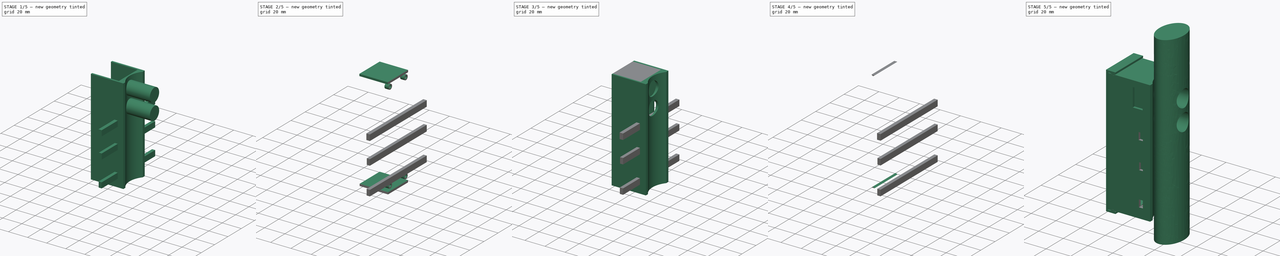
[diagram: build sequence overview — one tinted view per stage of 5, left to right]
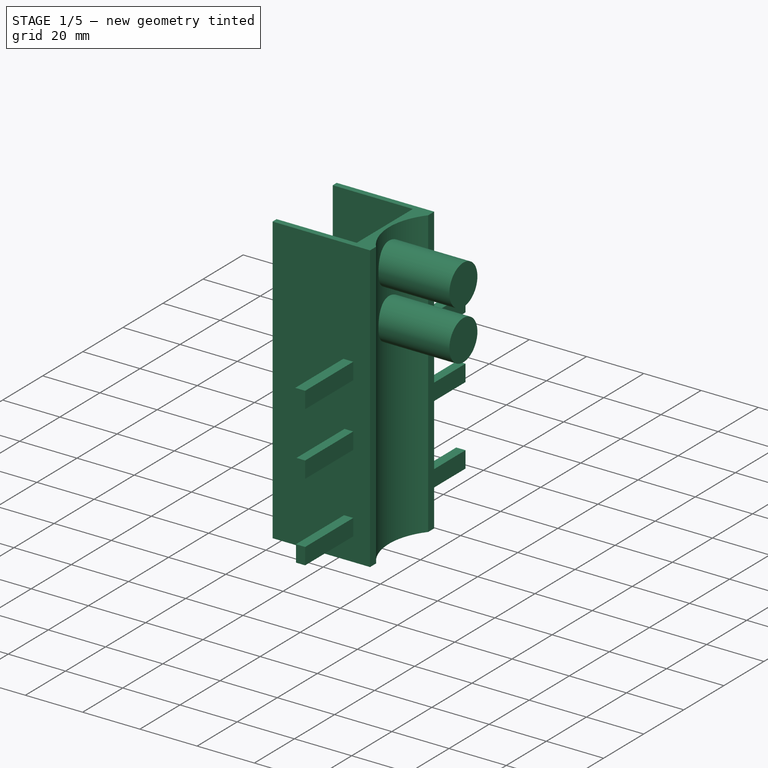
[diagram: stage 1 of 5 — iso view after this stage's code; geometry added in this stage tinted green]
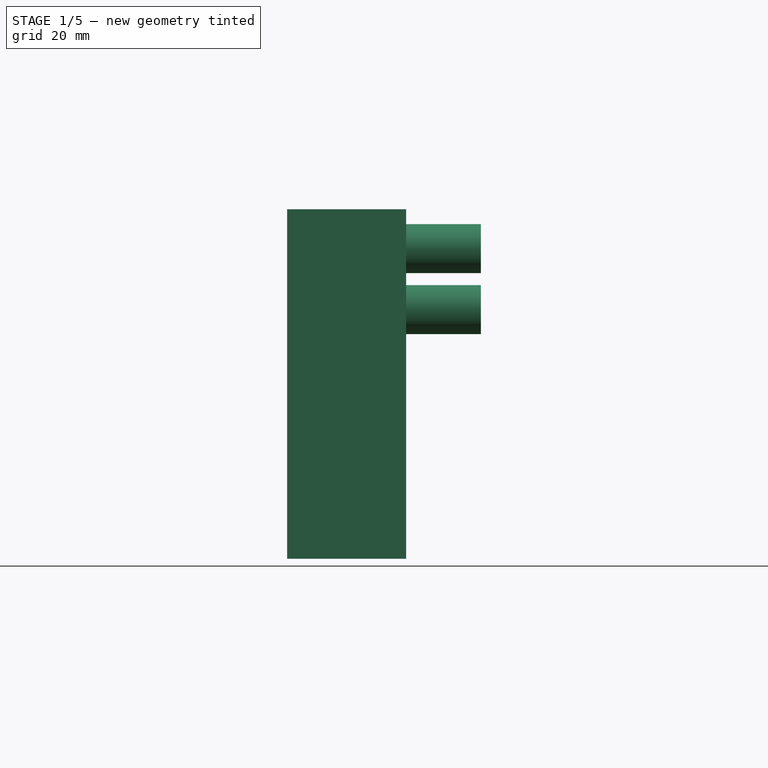
[diagram: stage 1 of 5 — front view after this stage's code; geometry added in this stage tinted green]
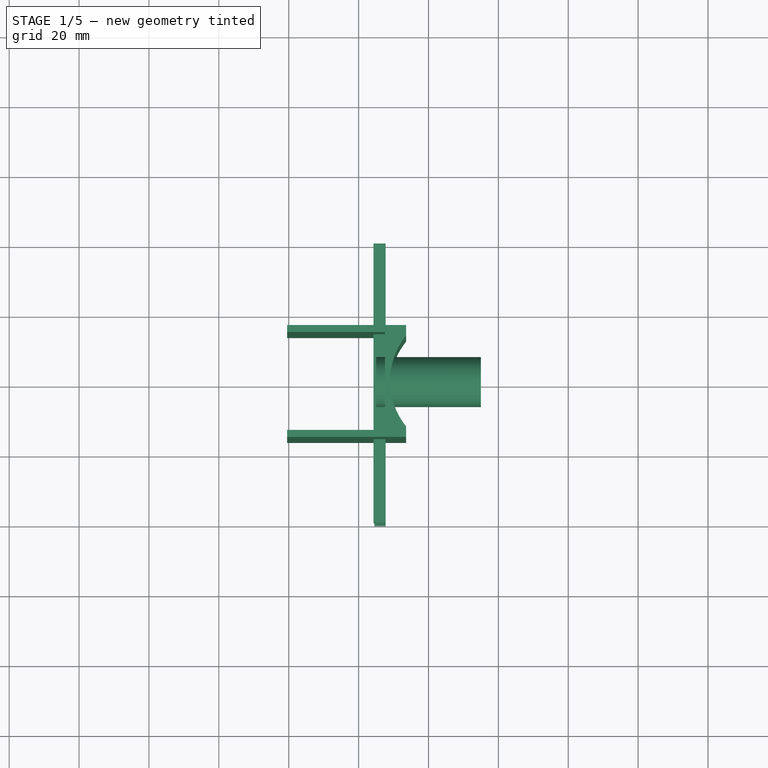
[diagram: stage 1 of 5 — top view after this stage's code; geometry added in this stage tinted green]
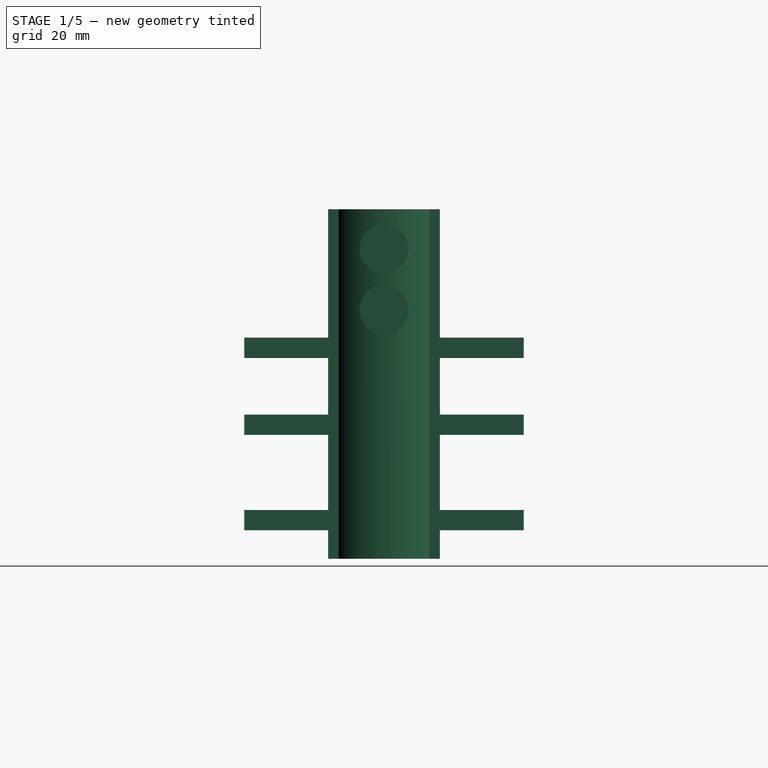
[diagram: stage 1 of 5 — right view after this stage's code; geometry added in this stage tinted green]
FCSTD DOCUMENT  (FreeCAD 0.20R29410 (Git))
Label: control
License: All rights reserved
LicenseURL: http://en.wikipedia.org/wiki/All_rights_reserved
objects: Sketcher::SketchObject×11, Part::Extrusion×10, Part::Cut×6, Part::MultiFuse×2
note: 29 computed .brp shape members not serialized (recipe doc carries the construction recipe); baked Part::Feature solids carry a one-line shape summary decoded from their .brp

FEATURE [Sketcher::SketchObject] Sketch
  FullyConstrained = false
  sketch-geometry (5):
    g0: ArcOfEllipse CenterX=0 CenterY=0 CenterZ=0 NormalX=0 NormalY=0 NormalZ=1 MajorRadius=15 MinorRadius=10 AngleXU=-1.5708 StartAngle=1.39097 EndAngle=7.67416
    g1: LineSegment StartX=3.7e-15 StartY=-15 StartZ=0 EndX=-3.7e-15 EndY=15 EndZ=0
    g2: LineSegment StartX=10 StartY=0 StartZ=0 EndX=-10 EndY=0 EndZ=0
    g3: GeomPoint X=4.9e-15 Y=-11.1803 Z=0
    g4: GeomPoint X=-4.9e-15 Y=11.1803 Z=0
  constraints (6):
    c: InternalAlignment(g1-g4 -> g0) x4
    c: Coincident(g0,g-1)
    c: Coincident(g0,g0)
    c: Horizontal(g2)
    c: DistanceY(g1,g1) = 30
    c: DistanceX(g2,g2) = 20
FEATURE [Part::Extrusion] Extrude  label="Pickaxe body"
  Base = -> Sketch
  Dir = (0,0,1)
  DirMode = 2
  FaceMakerClass = Part::FaceMakerBullseye
  LengthFwd = 150
  LengthRev = 0
  Placement = pos=(0,0,76) rot=(0,0,1;0rad)
  Solid = true
  Symmetric = false
FEATURE [Sketcher::SketchObject] Sketch001
  FullyConstrained = false
  MapMode = 45
  Placement = pos=(-8.90931e-07,-1.25496e-05,151) rot=(0.577351,0.57735,0.57735;2.09439rad)
  Support = -> [Extrude]
  sketch-geometry (2):
    g0: Circle CenterX=0 CenterY=28.7477 CenterZ=0 NormalX=0 NormalY=0 NormalZ=1 AngleXU=0 Radius=7
    g1: Circle CenterX=0 CenterY=11.2845 CenterZ=0 NormalX=0 NormalY=0 NormalZ=1 AngleXU=0 Radius=7
  constraints (4):
    c: PointOnObject(g0,g-2)
    c: Diameter(g0) = 14
    c: Equal(g0,g1) = 14
    c: PointOnObject(g1,g-2)
FEATURE [Part::Extrusion] Extrude001
  Base = -> Sketch001
  Dir = (1,-2.40545e-06,0)
  DirMode = 2
  FaceMakerClass = Part::FaceMakerBullseye
  LengthFwd = 30
  LengthRev = 0
  Solid = true
  Symmetric = true
FEATURE [Sketcher::SketchObject] Sketch003
  FullyConstrained = false
  sketch-geometry (4):
    g0: LineSegment StartX=12.0987 StartY=12.0524 StartZ=0 EndX=104.099 EndY=12.0524 EndZ=0
    g1: LineSegment StartX=104.099 StartY=12.0524 StartZ=0 EndX=104.099 EndY=-13.9476 EndZ=0
    g2: LineSegment StartX=104.099 StartY=-13.9476 StartZ=0 EndX=12.0987 EndY=-13.9476 EndZ=0
    g3: LineSegment StartX=12.0987 StartY=-13.9476 StartZ=0 EndX=12.0987 EndY=12.0524 EndZ=0
  constraints (10):
    c: Coincident(g0,g1)
    c: Coincident(g1,g2)
    c: Coincident(g2,g3)
    c: Coincident(g3,g0)
    c: Horizontal(g0)
    c: Horizontal(g2)
    c: Vertical(g1)
    c: Vertical(g3)
    c: DistanceX(g0,g0) = 92
    c: DistanceY(g1,g1) = 26
FEATURE [Sketcher::SketchObject] Sketch004
  FullyConstrained = false
  sketch-geometry (11):
    g0: LineSegment StartX=-40.46 StartY=16 StartZ=0 EndX=-6.4 EndY=16 EndZ=0
    g1: LineSegment StartX=-6.4 StartY=16 StartZ=0 EndX=-6.4 EndY=13 EndZ=0
    g2: ArcOfCircle CenterX=9.7124 CenterY=0 CenterZ=0 NormalX=0 NormalY=0 NormalZ=1 AngleXU=0 Radius=20.7029 StartAngle=2.4627 EndAngle=3.82049
    g3: LineSegment StartX=-6.4 StartY=16 StartZ=0 EndX=-6.4 EndY=-16.11 EndZ=0
    g4: LineSegment StartX=-40.46 StartY=-16 StartZ=0 EndX=-6.4 EndY=-16 EndZ=0
    g5: LineSegment StartX=-6.4 StartY=-16 StartZ=0 EndX=-6.4 EndY=-13 EndZ=0
    g6: LineSegment StartX=-40.46 StartY=16 StartZ=0 EndX=-40.46 EndY=14 EndZ=0
    g7: LineSegment StartX=-40.46 StartY=14 StartZ=0 EndX=-12.46 EndY=14 EndZ=0
    g8: LineSegment StartX=-12.46 StartY=14 StartZ=0 EndX=-12.46 EndY=-14 EndZ=0
    g9: LineSegment StartX=-12.46 StartY=-14 StartZ=0 EndX=-40.46 EndY=-14 EndZ=0
    g10: LineSegment StartX=-40.46 StartY=-14 StartZ=0 EndX=-40.46 EndY=-16 EndZ=0
  constraints (33):
    c: Horizontal(g0)
    c: Coincident(g0,g1)
    c: Vertical(g1)
    c: PointOnObject(g2,g-1)
    c: Coincident(g2,g1)
    c: Vertical(g3)
    c: Distance(g3,g-2) = 6.4
    c: DistanceY(g3,g3) = 32.11
    c: DistanceY(g-1,g3) = 16
    c: Coincident(g0,g3)
    c: PointOnObject(g2,g3)
    c: Horizontal(g4)
    c: Coincident(g4,g5)
    c: Vertical(g5)
    c: Coincident(g2,g5)
    c: DistanceY(g5,g5) = 3
    c: DistanceY(g1,g1) = 3
    c: Coincident(g0,g6)
    c: Vertical(g6)
    c: Coincident(g6,g7)
    c: Horizontal(g7)
    c: Coincident(g7,g8)
    c: Vertical(g8)
    c: Coincident(g8,g9)
    c: Horizontal(g9)
    c: Coincident(g10,g9)
    c: Coincident(g10,g4)
    c: Vertical(g10)
    c: DistanceY(g6,g6) = 2
    c: DistanceY(g10,g10) = 2
    c: Distance(g7,g1) = 6.06
    c: DistanceX(g9,g9) = 28
    c: DistanceX(g7,g7) = 28
FEATURE [Part::Extrusion] Extrude003
  Base = -> Sketch004
  Dir = (0,0,1)
  DirMode = 2
  FaceMakerClass = Part::FaceMakerBullseye
  LengthFwd = 100
  LengthRev = 0
  Placement = pos=(0,0,91) rot=(0,0,1;0rad)
  Solid = true
  Symmetric = false
FEATURE [Sketcher::SketchObject] Sketch011
  FullyConstrained = false
  Placement = pos=(0,0,0) rot=(1,0,0;1.5708rad)
  sketch-geometry (13):
    g0: LineSegment StartX=-15.4869 StartY=104.941 StartZ=0 EndX=-12.269 EndY=104.941 EndZ=0
    g1: LineSegment StartX=-12.269 StartY=104.941 StartZ=0 EndX=-12.269 EndY=99.1387 EndZ=0
    g2: LineSegment StartX=-12.269 StartY=99.1387 StartZ=0 EndX=-15.4869 EndY=99.1387 EndZ=0
    g3: LineSegment StartX=-15.4869 StartY=99.1387 StartZ=0 EndX=-15.4869 EndY=104.941 EndZ=0
    g4: LineSegment StartX=-12.269 StartY=99.1387 StartZ=0 EndX=-12.269 EndY=163.425 EndZ=0
    g5: LineSegment StartX=-15.304 StartY=132.251 StartZ=0 EndX=-12.269 EndY=132.251 EndZ=0
    g6: LineSegment StartX=-12.269 StartY=132.251 StartZ=0 EndX=-12.269 EndY=126.449 EndZ=0
    g7: LineSegment StartX=-12.269 StartY=126.449 StartZ=0 EndX=-15.304 EndY=126.449 EndZ=0
    g8: LineSegment StartX=-15.304 StartY=126.449 StartZ=0 EndX=-15.304 EndY=132.251 EndZ=0
    g9: LineSegment StartX=-12.269 StartY=154.267 StartZ=0 EndX=-15.7291 EndY=154.267 EndZ=0
    g10: LineSegment StartX=-15.7291 StartY=154.267 StartZ=0 EndX=-15.7291 EndY=148.445 EndZ=0
    g11: LineSegment StartX=-15.7291 StartY=148.445 StartZ=0 EndX=-12.269 EndY=148.445 EndZ=0
    g12: LineSegment StartX=-12.269 StartY=148.445 StartZ=0 EndX=-12.269 EndY=154.267 EndZ=0
  constraints (28):
    c: Coincident(g0,g1)
    c: Coincident(g1,g2)
    c: Coincident(g2,g3)
    c: Coincident(g3,g0)
    c: Horizontal(g0)
    c: Horizontal(g2)
    c: Vertical(g1)
    c: Vertical(g3)
    c: Coincident(g4,g1)
    c: Vertical(g4)
    c: Coincident(g5,g6)
    c: Coincident(g6,g7)
    c: Coincident(g7,g8)
    c: Coincident(g8,g5)
    c: Horizontal(g5)
    c: Horizontal(g7)
    c: Vertical(g6)
    c: Vertical(g8)
    c: PointOnObject(g6,g4)
    c: Coincident(g9,g10)
    c: Coincident(g10,g11)
    c: Coincident(g11,g12)
    c: Coincident(g12,g9)
    c: Horizontal(g9)
    c: Horizontal(g11)
    c: Vertical(g10)
    c: Vertical(g12)
    c: PointOnObject(g9,g4)
FEATURE [Part::Extrusion] Extrude010
  Base = -> Sketch011
  Dir = (0,-1,2e-16)
  DirMode = 2
  FaceMakerClass = Part::FaceMakerBullseye
  LengthFwd = 80
  LengthRev = 0
  Solid = true
  Symmetric = true
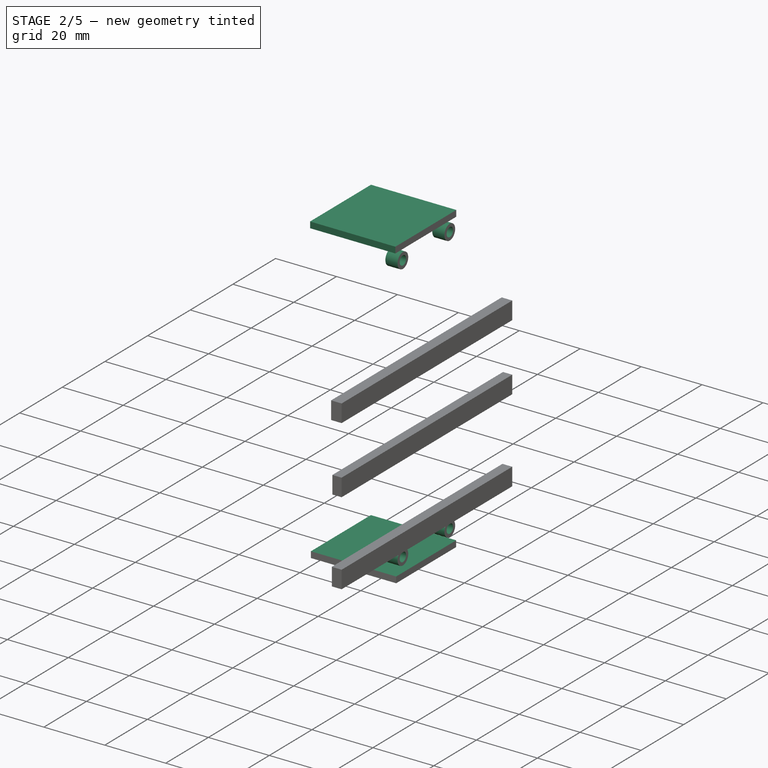
[diagram: stage 2 of 5 — iso view after this stage's code; geometry added in this stage tinted green]
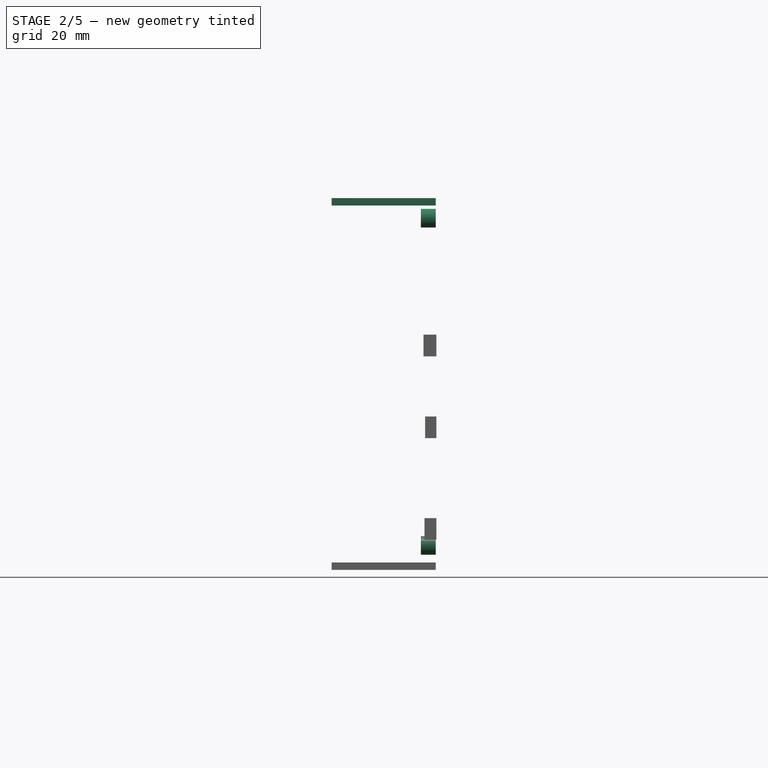
[diagram: stage 2 of 5 — front view after this stage's code; geometry added in this stage tinted green]
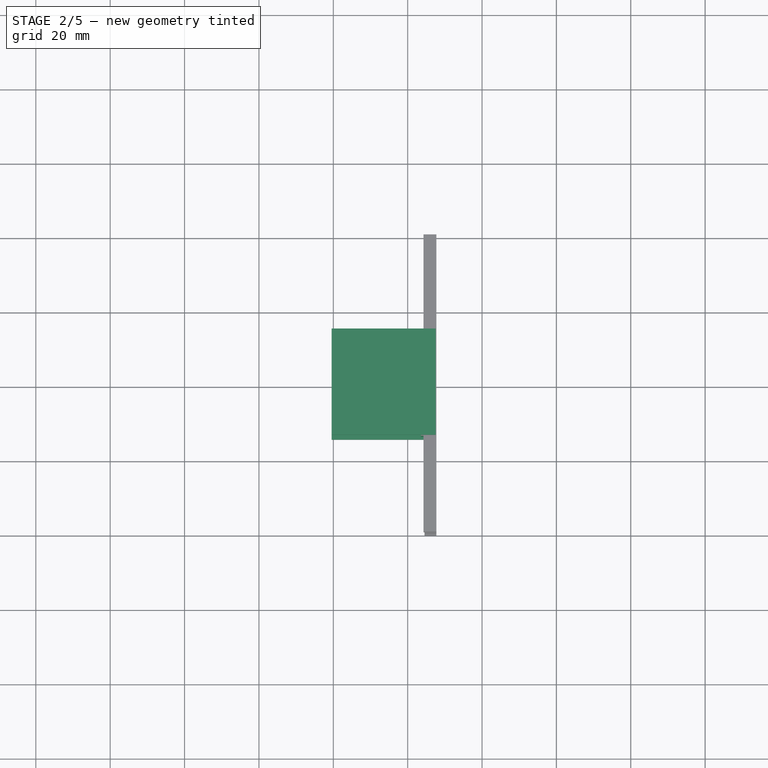
[diagram: stage 2 of 5 — top view after this stage's code; geometry added in this stage tinted green]
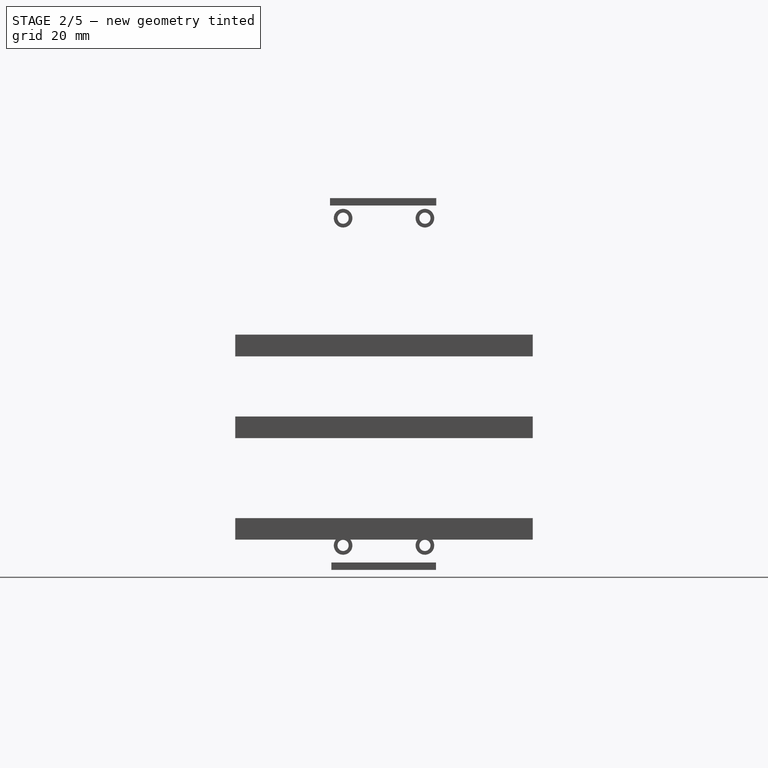
[diagram: stage 2 of 5 — right view after this stage's code; geometry added in this stage tinted green]
FEATURE [Part::Cut] Cut001
  Base = -> Extrude003
  Tool = -> Extrude001
FEATURE [Sketcher::SketchObject] Sketch005
  FullyConstrained = false
  MapMode = 5
  Placement = pos=(-12.46,0,0) rot=(0.57735,-0.57735,-0.57735;2.0944rad)
  Support = -> [Cut001]
  sketch-geometry (13):
    g0: LineSegment StartX=-13 StartY=187.59 StartZ=0 EndX=13 EndY=187.59 EndZ=0
    g1: LineSegment StartX=13 StartY=187.59 StartZ=0 EndX=13 EndY=95.59 EndZ=0
    g2: LineSegment StartX=13 StartY=95.59 StartZ=0 EndX=-13 EndY=95.59 EndZ=0
    g3: LineSegment StartX=-13 StartY=95.59 StartZ=0 EndX=-13 EndY=187.59 EndZ=0
    g4: GeomPoint X=0 Y=141.59 Z=0
    g5: LineSegment StartX=-13.9802 StartY=93 StartZ=0 EndX=14.1488 EndY=93 EndZ=0
    g6: LineSegment StartX=14.1488 StartY=93 StartZ=0 EndX=14.1488 EndY=91 EndZ=0
    g7: LineSegment StartX=14.1488 StartY=91 StartZ=0 EndX=-13.9802 EndY=91 EndZ=0
    g8: LineSegment StartX=-13.9802 StartY=91 StartZ=0 EndX=-13.9802 EndY=93 EndZ=0
    g9: LineSegment StartX=-14.0387 StartY=191 StartZ=0 EndX=14.5238 EndY=191 EndZ=0
    g10: LineSegment StartX=14.5238 StartY=191 StartZ=0 EndX=14.5238 EndY=189 EndZ=0
    g11: LineSegment StartX=14.5238 StartY=189 StartZ=0 EndX=-14.0387 EndY=189 EndZ=0
    g12: LineSegment StartX=-14.0387 StartY=189 StartZ=0 EndX=-14.0387 EndY=191 EndZ=0
  constraints (30):
    c: Coincident(g0,g1)
    c: Coincident(g1,g2)
    c: Coincident(g2,g3)
    c: Horizontal(g0)
    c: Horizontal(g2)
    c: Vertical(g1)
    c: Vertical(g3)
    c: PointOnObject(g4,g-2)
    c: Symmetric(g0,g1,g4)
    c: DistanceX(g0,g0) = 26
    c: DistanceY(g1,g1) = 92
    c: Coincident(g5,g6)
    c: Coincident(g6,g7)
    c: Coincident(g7,g8)
    c: Coincident(g8,g5)
    c: Horizontal(g5)
    c: Horizontal(g7)
    c: Vertical(g6)
    c: Vertical(g8)
    c: DistanceY(g8,g8) = 2
    c: Coincident(g9,g10)
    c: Coincident(g10,g11)
    c: Coincident(g11,g12)
    c: Coincident(g12,g9)
    c: Horizontal(g9)
    c: Horizontal(g11)
    c: Vertical(g10)
    c: Vertical(g12)
    c: DistanceY(g12,g12) = 2
    c: DistanceY(g-1,g4) = 141.59
FEATURE [Sketcher::SketchObject] Sketch006
  FullyConstrained = false
  MapMode = 5
  Placement = pos=(-12.46,0,0) rot=(0.57735,-0.57735,-0.57735;2.0944rad)
  Support = -> [Cut001]
  sketch-geometry (22):
    g0: LineSegment StartX=-13 StartY=187.59 StartZ=0 EndX=13 EndY=187.59 EndZ=0
    g1: LineSegment StartX=13 StartY=187.59 StartZ=0 EndX=13 EndY=95.59 EndZ=0
    g2: LineSegment StartX=13 StartY=95.59 StartZ=0 EndX=-13 EndY=95.59 EndZ=0
    g3: LineSegment StartX=-13 StartY=95.59 StartZ=0 EndX=-13 EndY=187.59 EndZ=0
    g4: GeomPoint X=0 Y=141.59 Z=0
    g5: LineSegment StartX=-13.9802 StartY=93 StartZ=0 EndX=14.1488 EndY=93 EndZ=0
    g6: LineSegment StartX=14.1488 StartY=93 StartZ=0 EndX=14.1488 EndY=91 EndZ=0
    g7: LineSegment StartX=14.1488 StartY=91 StartZ=0 EndX=-13.9802 EndY=91 EndZ=0
    g8: LineSegment StartX=-13.9802 StartY=91 StartZ=0 EndX=-13.9802 EndY=93 EndZ=0
    g9: LineSegment StartX=-14.0387 StartY=191 StartZ=0 EndX=14.5238 EndY=191 EndZ=0
    g10: LineSegment StartX=14.5238 StartY=191 StartZ=0 EndX=14.5238 EndY=189 EndZ=0
    g11: LineSegment StartX=14.5238 StartY=189 StartZ=0 EndX=-14.0387 EndY=189 EndZ=0
    g12: LineSegment StartX=-14.0387 StartY=189 StartZ=0 EndX=-14.0387 EndY=191 EndZ=0
    g13: Circle CenterX=-11 CenterY=185.59 CenterZ=0 NormalX=0 NormalY=0 NormalZ=1 AngleXU=0 Radius=1.5
    g14: Circle CenterX=-11 CenterY=185.59 CenterZ=0 NormalX=0 NormalY=0 NormalZ=1 AngleXU=0 Radius=2.5
    g15: Circle CenterX=11 CenterY=185.59 CenterZ=0 NormalX=0 NormalY=0 NormalZ=1 AngleXU=0 Radius=2.5
    g16: Circle CenterX=11 CenterY=185.59 CenterZ=0 NormalX=0 NormalY=0 NormalZ=1 AngleXU=0 Radius=1.5
    g17: LineSegment StartX=-24.864 StartY=141.59 StartZ=0 EndX=27.3082 EndY=141.59 EndZ=0
    g18: Circle CenterX=-11 CenterY=97.59 CenterZ=0 NormalX=0 NormalY=0 NormalZ=1 AngleXU=0 Radius=2.5
    g19: Circle CenterX=-11 CenterY=97.59 CenterZ=0 NormalX=0 NormalY=0 NormalZ=1 AngleXU=0 Radius=1.5
    g20: Circle CenterX=11 CenterY=97.59 CenterZ=0 NormalX=0 NormalY=0 NormalZ=1 AngleXU=0 Radius=2.5
    g21: Circle CenterX=11 CenterY=97.59 CenterZ=0 NormalX=0 NormalY=0 NormalZ=1 AngleXU=0 Radius=1.5
  constraints (47):
    c: Coincident(g0,g1)
    c: Coincident(g1,g2)
    c: Coincident(g2,g3)
    c: Coincident(g3,g0)
    c: Horizontal(g0)
    c: Horizontal(g2)
    c: Vertical(g1)
    c: Vertical(g3)
    c: PointOnObject(g4,g-2)
    c: Symmetric(g0,g1,g4)
    c: DistanceX(g0,g0) = 26
    c: DistanceY(g1,g1) = 92
    c: Coincident(g5,g6)
    c: Coincident(g6,g7)
    c: Coincident(g7,g8)
    c: Coincident(g8,g5)
    c: Horizontal(g5)
    c: Horizontal(g7)
    c: Vertical(g6)
    c: Vertical(g8)
    c: DistanceY(g8,g8) = 2
    c: Coincident(g9,g10)
    c: Coincident(g10,g11)
    c: Coincident(g11,g12)
    c: Coincident(g12,g9)
    c: Horizontal(g9)
    c: Horizontal(g11)
    c: Vertical(g10)
    c: Vertical(g12)
    c: DistanceY(g12,g12) = 2
    c: Coincident(g14,g13)
    c: Diameter(g13) = 3
    c: Diameter(g14) = 5
    c: DistanceY(g-1,g4) = 141.59
    c: Distance(g13,g0) = 2
    c: Distance(g13,g3) = 2
    c: Coincident(g15,g16)
    c: Diameter(g16) = 3
    c: Diameter(g15) = 5
    c: Horizontal(g17)
    c: PointOnObject(g4,g17)
    c: Coincident(g18,g19)
    c: Diameter(g19) = 3
    c: Diameter(g18) = 5
    c: Coincident(g20,g21)
    c: Diameter(g21) = 3
    c: Diameter(g20) = 5
FEATURE [Part::Extrusion] Extrude004
  Base = -> Sketch005
  Dir = (-1,0,0)
  DirMode = 2
  FaceMakerClass = Part::FaceMakerBullseye
  LengthFwd = 28
  LengthRev = 0
  Solid = true
  Symmetric = false
FEATURE [Part::Extrusion] Extrude005
  Base = -> Sketch006
  Dir = (-1,0,0)
  DirMode = 2
  FaceMakerClass = Part::FaceMakerBullseye
  LengthFwd = 4
  LengthRev = 0
  Solid = true
  Symmetric = false
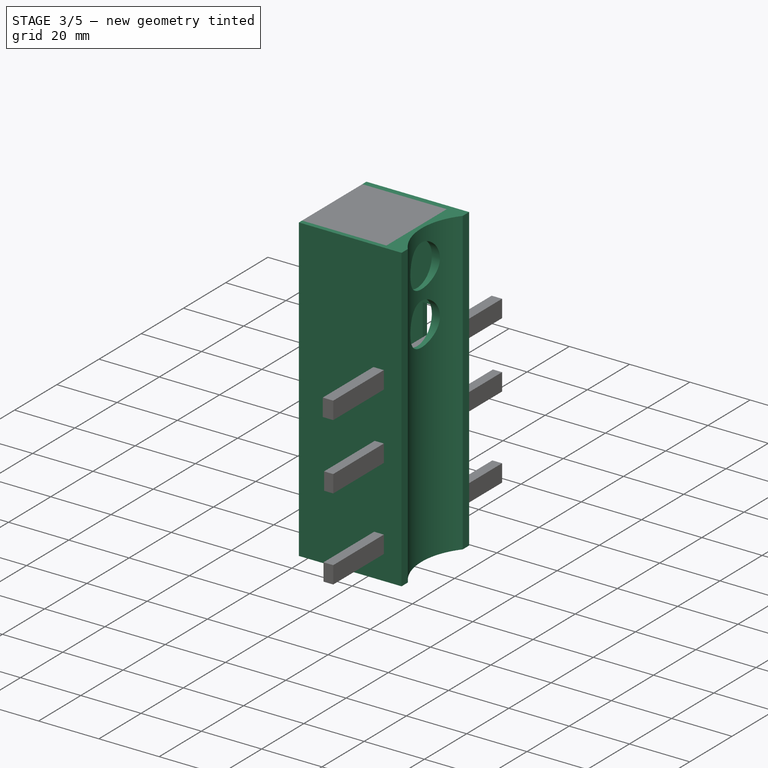
[diagram: stage 3 of 5 — iso view after this stage's code; geometry added in this stage tinted green]
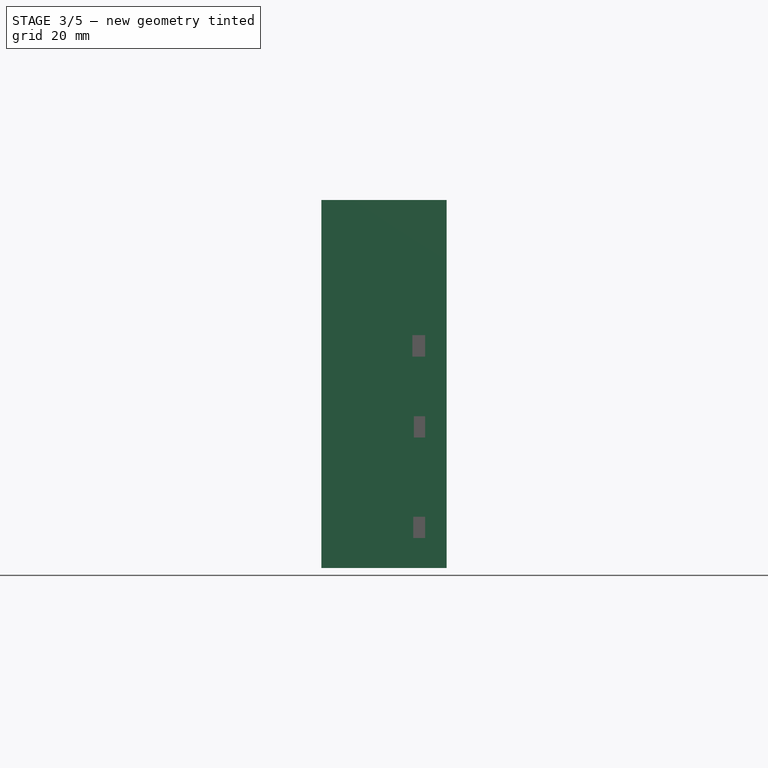
[diagram: stage 3 of 5 — front view after this stage's code; geometry added in this stage tinted green]
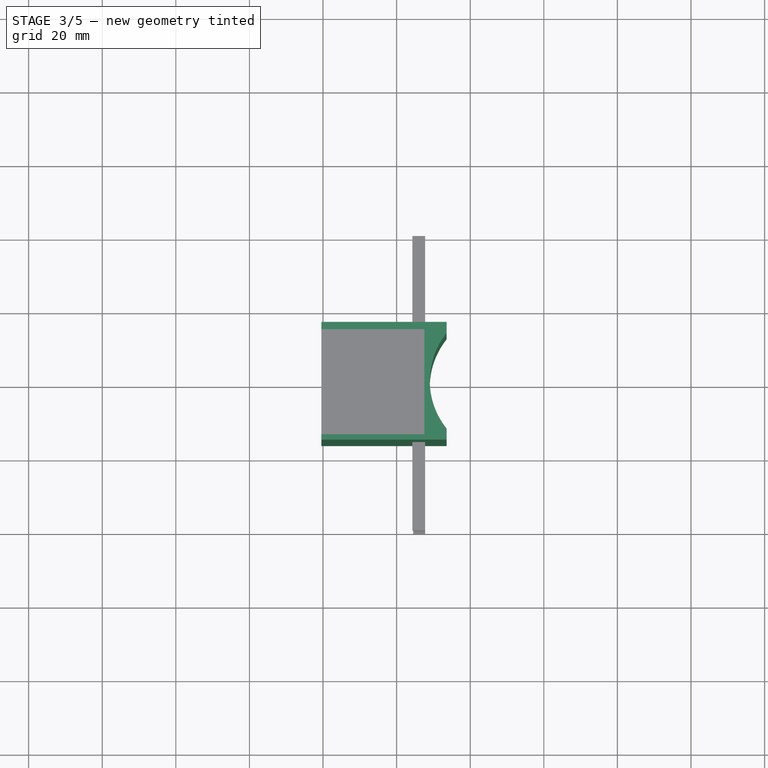
[diagram: stage 3 of 5 — top view after this stage's code; geometry added in this stage tinted green]
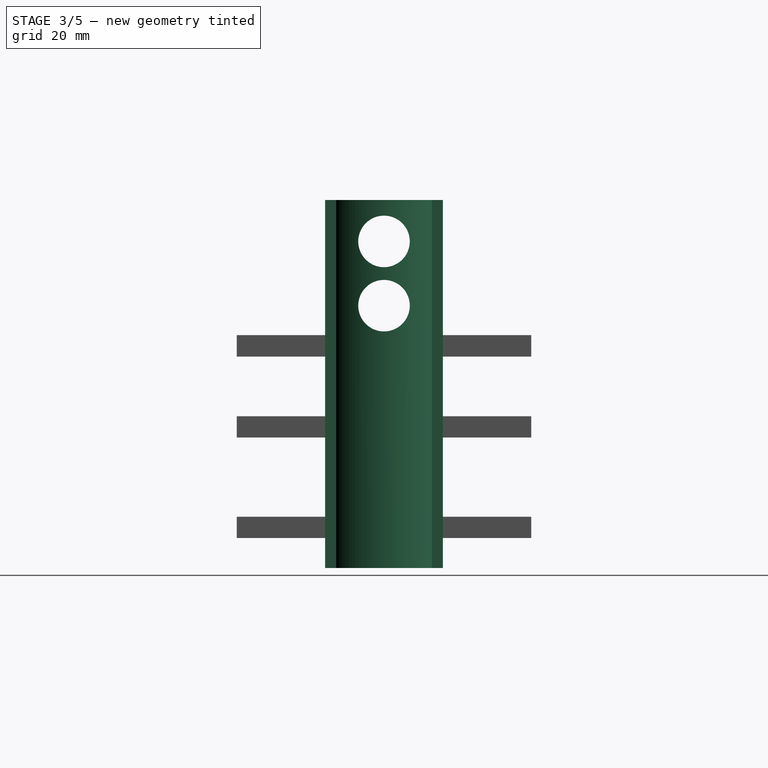
[diagram: stage 3 of 5 — right view after this stage's code; geometry added in this stage tinted green]
FEATURE [Part::MultiFuse] Fusion
  Shapes = -> [Extrude004,Cut001]
FEATURE [Part::MultiFuse] Fusion001
  Shapes = -> [Fusion,Extrude005]
FEATURE [Sketcher::SketchObject] Sketch007
  FullyConstrained = true
  MapMode = 5
  Placement = pos=(0,16,0) rot=(0,0.707107,0.707107;3.14159rad)
  Support = -> [Fusion001]
  sketch-geometry (5):
    g0: LineSegment StartX=12.38 StartY=190.99 StartZ=0 EndX=12.38 EndY=59.71 EndZ=0
    g1: LineSegment StartX=12.38 StartY=160.99 StartZ=0 EndX=20.38 EndY=160.99 EndZ=0
    g2: LineSegment StartX=20.38 StartY=160.99 StartZ=0 EndX=20.38 EndY=148.99 EndZ=0
    g3: LineSegment StartX=20.38 StartY=148.99 StartZ=0 EndX=12.38 EndY=148.99 EndZ=0
    g4: LineSegment StartX=12.38 StartY=148.99 StartZ=0 EndX=12.38 EndY=160.99 EndZ=0
  constraints (16):
    c: Vertical(g0)
    c: Coincident(g1,g2)
    c: Coincident(g2,g3)
    c: Coincident(g3,g4)
    c: Coincident(g4,g1)
    c: Horizontal(g1)
    c: Horizontal(g3)
    c: Vertical(g2)
    c: Vertical(g4)
    c: PointOnObject(g1,g0)
    c: DistanceY(g-1,g0) = 59.71
    c: DistanceX(g-1,g0) = 12.38
    c: DistanceY(g0,g0) = 131.28
    c: DistanceY(g1,g0) = 30
    c: DistanceY(g4,g4) = 12
    c: DistanceX(g1,g1) = 8
FEATURE [Part::Extrusion] Extrude006
  Base = -> Sketch007
  Dir = (0,1,-2e-16)
  DirMode = 2
  FaceMakerClass = Part::FaceMakerBullseye
  LengthFwd = 10
  LengthRev = 0
  Solid = true
  Symmetric = true
FEATURE [Part::Cut] Cut002
  Base = -> Fusion001
  Tool = -> Extrude006
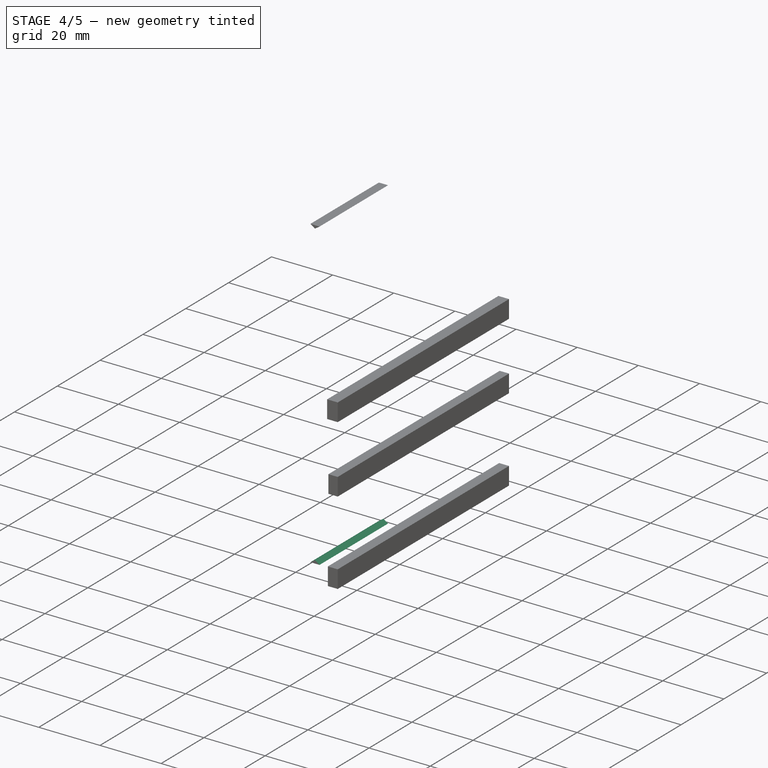
[diagram: stage 4 of 5 — iso view after this stage's code; geometry added in this stage tinted green]
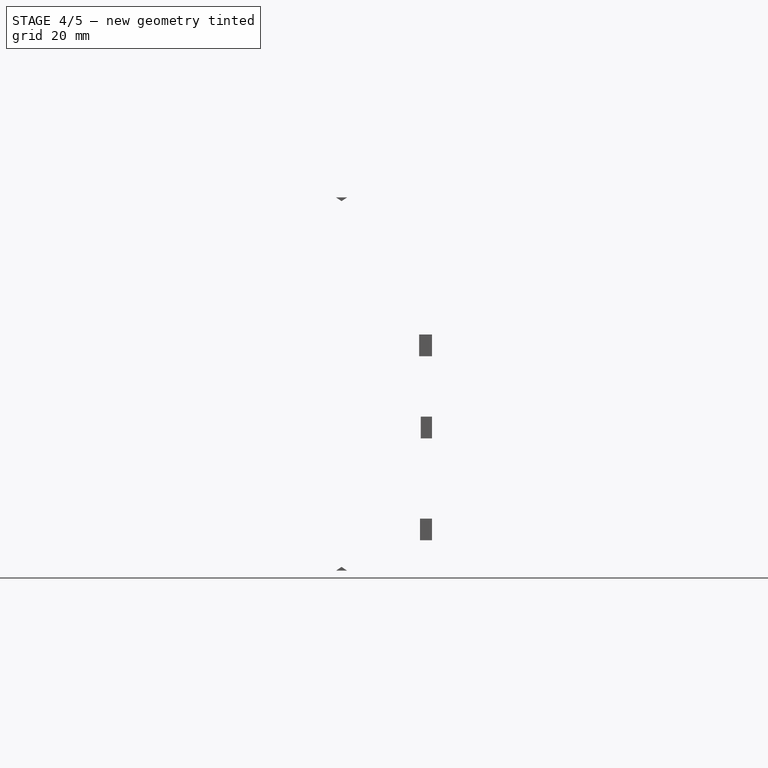
[diagram: stage 4 of 5 — front view after this stage's code; geometry added in this stage tinted green]
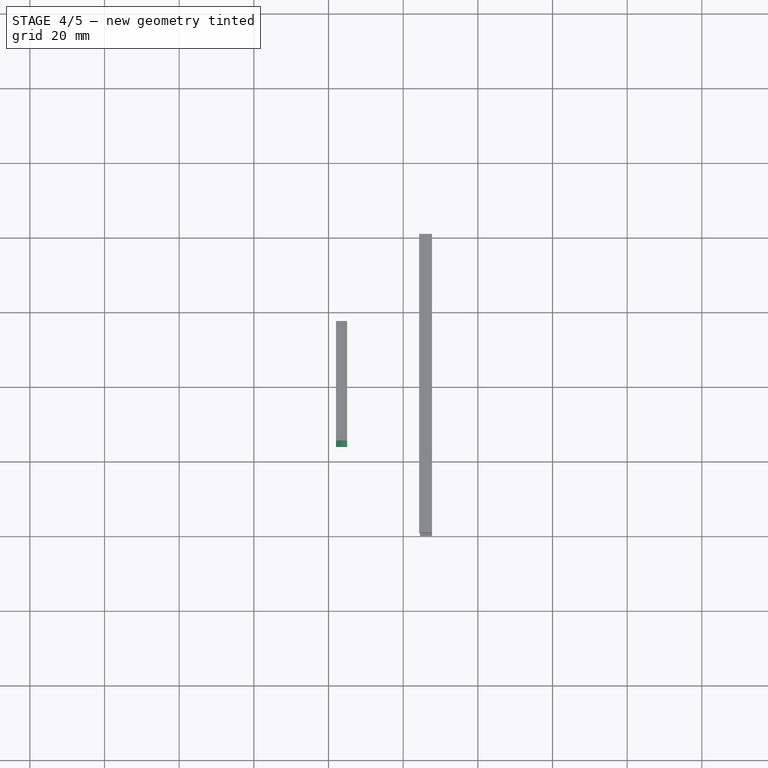
[diagram: stage 4 of 5 — top view after this stage's code; geometry added in this stage tinted green]
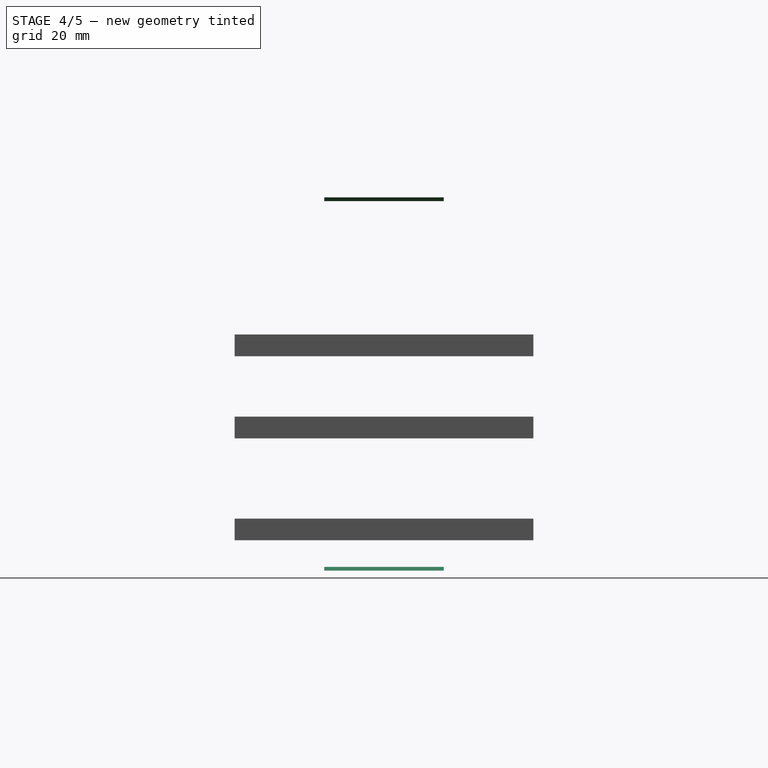
[diagram: stage 4 of 5 — right view after this stage's code; geometry added in this stage tinted green]
FEATURE [Sketcher::SketchObject] Sketch008
  FullyConstrained = false
  MapMode = 5
  Placement = pos=(0,-16,0) rot=(1,0,0;1.5708rad)
  Support = -> [Cut002]
  sketch-geometry (6):
    g0: LineSegment StartX=-12.46 StartY=192.48 StartZ=0 EndX=-12.46 EndY=66.28 EndZ=0
    g1: LineSegment StartX=-12.46 StartY=191 StartZ=0 EndX=-20.5591 EndY=191 EndZ=0
    g2: LineSegment StartX=-12.46 StartY=186 StartZ=0 EndX=-20.46 EndY=186 EndZ=0
    g3: LineSegment StartX=-20.46 StartY=186 StartZ=0 EndX=-20.46 EndY=171 EndZ=0
    g4: LineSegment StartX=-20.46 StartY=171 StartZ=0 EndX=-12.46 EndY=171 EndZ=0
    g5: LineSegment StartX=-12.46 StartY=171 StartZ=0 EndX=-12.46 EndY=186 EndZ=0
  constraints (19):
    c: Vertical(g0)
    c: DistanceX(g-2,g0) = -12.46
    c: DistanceY(g-1,g0) = 66.28
    c: DistanceY(g0,g0) = 126.2
    c: PointOnObject(g1,g0)
    c: Horizontal(g1)
    c: Coincident(g2,g3)
    c: Coincident(g3,g4)
    c: Coincident(g4,g5)
    c: Coincident(g5,g2)
    c: Horizontal(g2)
    c: Horizontal(g4)
    c: Vertical(g3)
    c: Vertical(g5)
    c: PointOnObject(g2,g0)
    c: DistanceY(g-1,g1) = 191
    c: DistanceY(g2,g1) = 5
    c: DistanceY(g3,g3) = 15
    c: DistanceX(g4,g4) = 8
FEATURE [Part::Extrusion] Extrude007
  Base = -> Sketch008
  Dir = (0,-1,2e-16)
  DirMode = 2
  FaceMakerClass = Part::FaceMakerBullseye
  LengthFwd = 10
  LengthRev = 0
  Solid = true
  Symmetric = true
FEATURE [Part::Cut] Cut003
  Base = -> Cut002
  Tool = -> Extrude007
FEATURE [Sketcher::SketchObject] Sketch010
  FullyConstrained = false
  MapMode = 5
  Placement = pos=(0,-16,0) rot=(1,0,0;1.5708rad)
  Support = -> [Cut003]
  sketch-geometry (13):
    g0: LineSegment StartX=-40.4 StartY=191 StartZ=0 EndX=-6.4 EndY=191 EndZ=0
    g1: LineSegment StartX=-6.4 StartY=191 StartZ=0 EndX=-6.4 EndY=91 EndZ=0
    g2: LineSegment StartX=-6.4 StartY=91 StartZ=0 EndX=-40.4 EndY=91 EndZ=0
    g3: LineSegment StartX=-40.4 StartY=91 StartZ=0 EndX=-40.4 EndY=191 EndZ=0
    g4: LineSegment StartX=-38.0096 StartY=191 StartZ=0 EndX=-36.5096 EndY=189.988 EndZ=0
    g5: LineSegment StartX=-36.5096 StartY=189.988 StartZ=0 EndX=-35.0096 EndY=191 EndZ=0
    g6: LineSegment StartX=-35.0096 StartY=191 StartZ=0 EndX=-38.0096 EndY=191 EndZ=0
    g7: LineSegment StartX=-36.5096 StartY=191 StartZ=0 EndX=-36.5096 EndY=189.988 EndZ=0
    g8: LineSegment StartX=-76.7636 StartY=141 StartZ=0 EndX=40.2809 EndY=141 EndZ=0
    g9: LineSegment StartX=-38.0096 StartY=91 StartZ=0 EndX=-36.5096 EndY=92.0118 EndZ=0
    g10: LineSegment StartX=-36.5096 StartY=92.0118 StartZ=0 EndX=-35.0096 EndY=91 EndZ=0
    g11: LineSegment StartX=-35.0096 StartY=91 StartZ=0 EndX=-38.0096 EndY=91 EndZ=0
    g12: LineSegment StartX=-36.5096 StartY=91 StartZ=0 EndX=-36.5096 EndY=92.0118 EndZ=0
  constraints (33):
    c: Coincident(g0,g1)
    c: Coincident(g1,g2)
    c: Coincident(g2,g3)
    c: Coincident(g3,g0)
    c: Horizontal(g0)
    c: Horizontal(g2)
    c: Vertical(g1)
    c: Vertical(g3)
    c: DistanceX(g2,g2) = 34
    c: DistanceY(g1,g1) = 100
    c: DistanceX(g-2,g1) = -6.4
    c: DistanceY(g-1,g1) = 91
    c: PointOnObject(g4,g0)
    c: Coincident(g4,g5)
    c: PointOnObject(g5,g0)
    c: Coincident(g5,g6)
    c: Coincident(g6,g4)
    c: Coincident(g7,g4)
    c: Vertical(g7)
    c: PointOnObject(g7,g6)
    c: Angle(g4,g6) = 0.593412
    c: Angle(g6,g5) = 0.593412
    c: DistanceX(g6,g6) = 3
    c: Horizontal(g8)
    c: Distance(g0,g8) = 50
    c: Coincident(g9,g10)
    c: Coincident(g10,g11)
    c: Coincident(g11,g9)
    c: Coincident(g12,g9)
    c: Vertical(g12)
    c: PointOnObject(g12,g11)
    c: Angle(g9,g11) = -0.593412
    c: Angle(g11,g10) = -0.593412
FEATURE [Part::Extrusion] Extrude009
  Base = -> Sketch010
  Dir = (0,-1,2e-16)
  DirMode = 2
  FaceMakerClass = Part::FaceMakerBullseye
  LengthFwd = 0
  LengthRev = 32
  Solid = true
  Symmetric = false
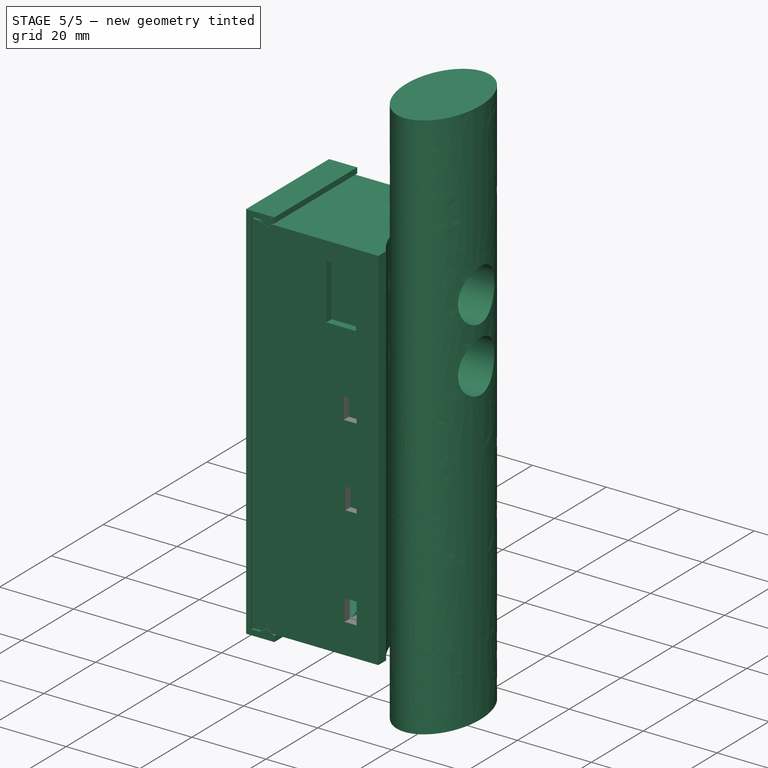
[diagram: stage 5 of 5 — iso view after this stage's code; geometry added in this stage tinted green]
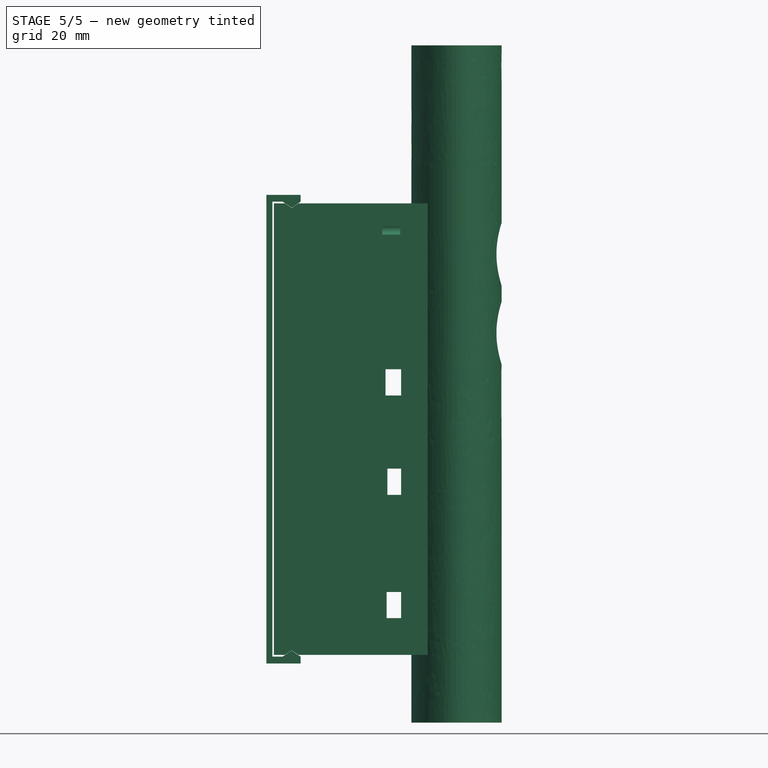
[diagram: stage 5 of 5 — front view after this stage's code; geometry added in this stage tinted green]
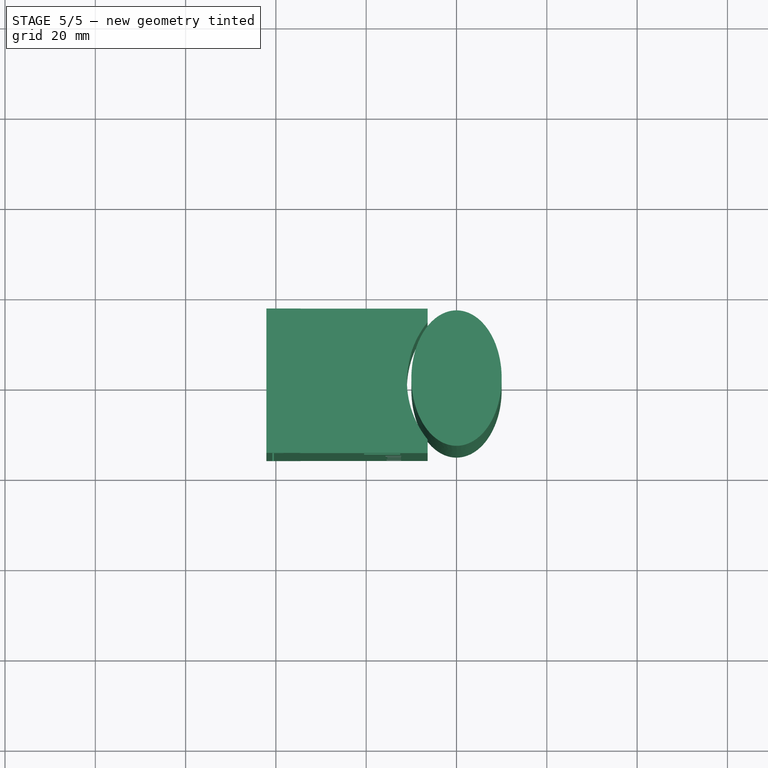
[diagram: stage 5 of 5 — top view after this stage's code; geometry added in this stage tinted green]
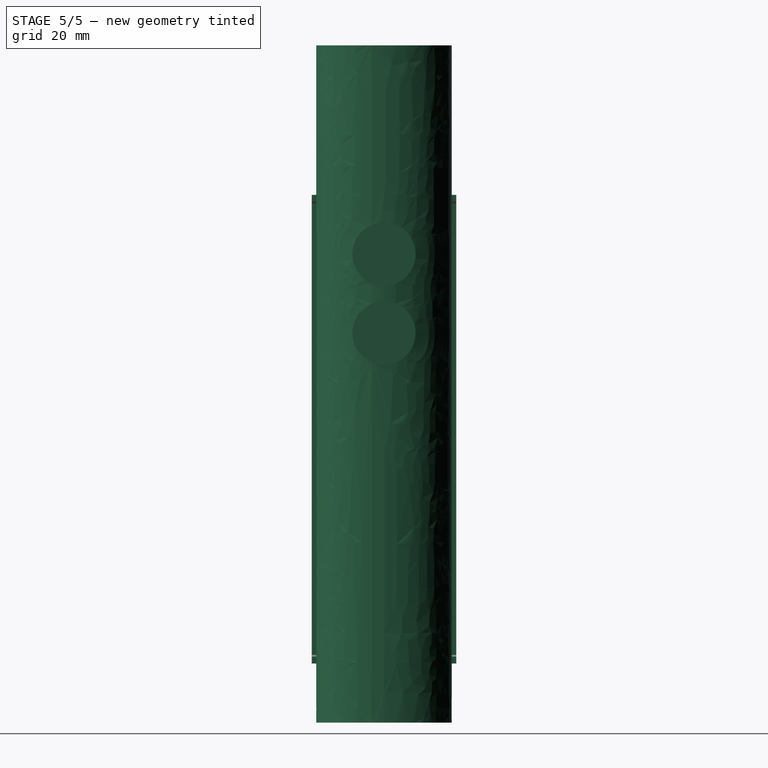
[diagram: stage 5 of 5 — right view after this stage's code; geometry added in this stage tinted green]
FEATURE [Part::Cut] Cut  label="PickaxeBody"
  Base = -> Extrude
  Tool = -> Extrude001
FEATURE [Sketcher::SketchObject] Sketch009
  FullyConstrained = false
  Placement = pos=(0,0,0) rot=(1,0,0;1.5708rad)
  expr: Constraints[23] = 1.5mm
  sketch-geometry (18):
    g0: LineSegment StartX=-38.5123 StartY=191.39 StartZ=0 EndX=-36.5123 EndY=190.044 EndZ=0
    g1: LineSegment StartX=-36.5123 StartY=190.044 StartZ=0 EndX=-34.5123 EndY=191.39 EndZ=0
    g2: LineSegment StartX=-98.718 StartY=191.39 StartZ=0 EndX=0 EndY=191.39 EndZ=0
    g3: LineSegment StartX=-6.40002 StartY=191 StartZ=0 EndX=-6.40002 EndY=91 EndZ=0
    g4: LineSegment StartX=77.8088 StartY=141 StartZ=0 EndX=-169.161 EndY=141 EndZ=0
    g5: LineSegment StartX=-34.5123 StartY=191.39 StartZ=0 EndX=-34.5123 EndY=192.89 EndZ=0
    g6: LineSegment StartX=-34.5123 StartY=192.89 StartZ=0 EndX=-42.1212 EndY=192.89 EndZ=0
    g7: LineSegment StartX=-42.1212 StartY=192.89 StartZ=0 EndX=-42.1212 EndY=141 EndZ=0
    g8: LineSegment StartX=-40.7869 StartY=141 StartZ=0 EndX=-40.7869 EndY=191.39 EndZ=0
    g9: LineSegment StartX=-40.7869 StartY=191.39 StartZ=0 EndX=-38.5123 EndY=191.39 EndZ=0
    g10: LineSegment StartX=-36.5123 StartY=190.044 StartZ=0 EndX=-36.5123 EndY=191.39 EndZ=0
    g11: LineSegment StartX=-40.7869 StartY=141 StartZ=0 EndX=-40.7869 EndY=90.61 EndZ=0
    g12: LineSegment StartX=-40.7869 StartY=90.61 StartZ=0 EndX=-38.5123 EndY=90.61 EndZ=0
    g13: LineSegment StartX=-38.5123 StartY=90.61 StartZ=0 EndX=-36.5123 EndY=91.9556 EndZ=0
    g14: LineSegment StartX=-36.5123 StartY=91.9556 StartZ=0 EndX=-34.5123 EndY=90.61 EndZ=0
    g15: LineSegment StartX=-34.5123 StartY=90.61 StartZ=0 EndX=-34.5123 EndY=89.11 EndZ=0
    g16: LineSegment StartX=-34.5123 StartY=89.11 StartZ=0 EndX=-42.1212 EndY=89.11 EndZ=0
    g17: LineSegment StartX=-42.1212 StartY=89.11 StartZ=0 EndX=-42.1212 EndY=141 EndZ=0
  constraints (39):
    c: Coincident(g0,g1)
    c: Horizontal(g2)
    c: DistanceY(g-1,g2) = 191.39
    c: PointOnObject(g1,g2)
    c: PointOnObject(g0,g2)
    c: Vertical(g3)
    c: DistanceY(g3,g3) = 100
    c: PointOnObject(g2,g-2)
    c: Horizontal(g4)
    c: DistanceY(g-1,g3) = 91
    c: Distance(g3,g4) = 50
    c: Coincident(g1,g5)
    c: Vertical(g5)
    c: Coincident(g5,g6)
    c: Horizontal(g6)
    c: Coincident(g6,g7)
    c: PointOnObject(g7,g4)
    c: Vertical(g7)
    c: PointOnObject(g8,g4)
    c: PointOnObject(g8,g2)
    c: Vertical(g8)
    c: Coincident(g8,g9)
    c: Coincident(g9,g0)
    c: DistanceY(g5,g5) = 1.5
    c: DistanceX(g0,g1) = 4
    c: Coincident(g10,g0)
    c: PointOnObject(g10,g2)
    c: Vertical(g10)
    c: DistanceX(g0,g10) = 2
    c: Coincident(g13,g14)
    c: Coincident(g14,g15)
    c: Vertical(g15)
    c: Coincident(g15,g16)
    c: Horizontal(g16)
    c: Coincident(g16,g17)
    c: Vertical(g17)
    c: Vertical(g11)
    c: Coincident(g11,g12)
    c: Coincident(g12,g13)
FEATURE [Part::Extrusion] Extrude008  label="Lid"
  Base = -> Sketch009
  Dir = (0,-1,-6e-16)
  DirMode = 2
  FaceMakerClass = Part::FaceMakerBullseye
  LengthFwd = 32
  LengthRev = 0
  Solid = true
  Symmetric = true
FEATURE [Part::Cut] Cut004
  Base = -> Cut003
  Tool = -> Extrude009
FEATURE [Part::Cut] Cut005  label="Body"
  Base = -> Cut004
  Tool = -> Extrude010
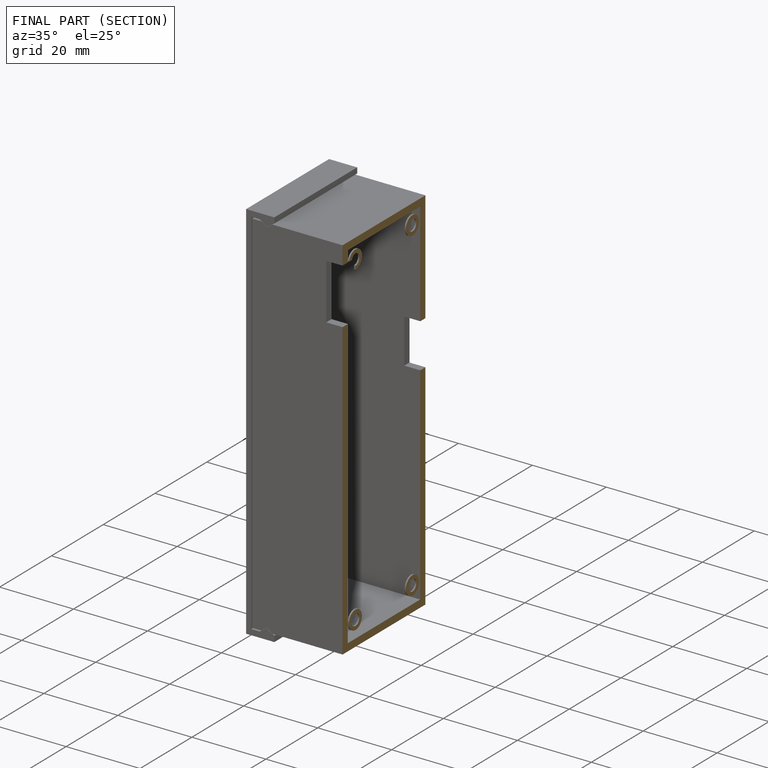
[diagram: finished part — half-section view (interior)]
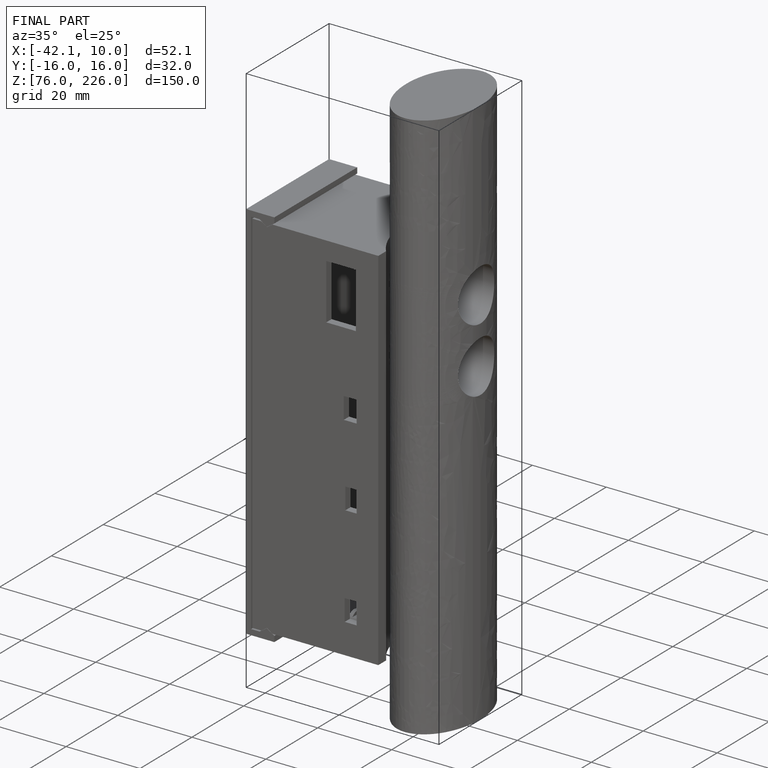
[diagram: finished part — iso view with bounding-box wireframe]
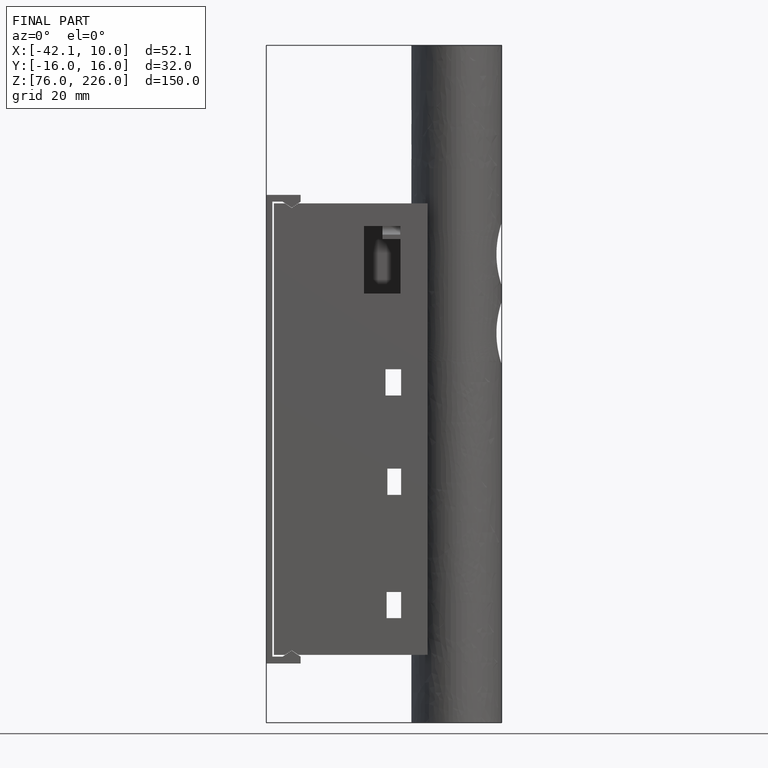
[diagram: finished part — front view with bounding-box wireframe]
